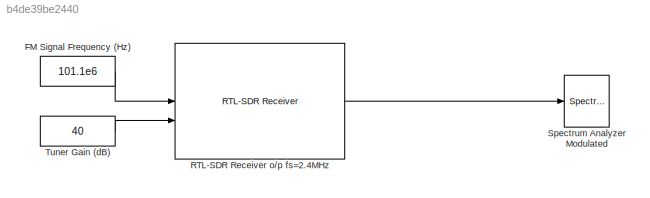
MODEL slx_b4de39be2440
KIND model
CONFIG AbsTol = auto
CONFIG EnableMultiTasking = off
CONFIG FixedStep = auto
CONFIG MaxStep = auto
CONFIG MinStep = auto
CONFIG RelTol = 1e-3
CONFIG SampleTimeConstraint = Unconstrained
CONFIG SolverName = VariableStepAuto
CONFIG StartTime = 0.0
CONFIG StopTime = 10.0
BLOCK [Constant] FM Signal Frequency (Hz)
  Value = 101.1e6
BLOCK [Reference] RTL-SDR Receiver o//p fs=2.4MHz  REF=sdrrlib/RTL-SDR
Receiver
  SourceBlock = sdrrlib/RTL-SDR\nReceiver
  SourceType = RTL-SDR Receiver
BLOCK [SpectrumAnalyzer] Spectrum Analyzer Modulated
  AveragingMethod = Running
  AxesScaling = Manual
  DefaultConfigurationName = spbscopes.SpectrumAnalyzerBlockCfg
  GraphicalSettings = {"GraphicalSettings":{"Style":{"BackgroundColor":[0.12941176470588237,0.12941176470588237,0.12941176470588237],"AxesColor":[1,1,1],"LabelsColor":[0.09803921568627451,0.09803921568627451,0.09803921568627451],"PreserveColors":false,"Visible":[true],"LineStyle":["-"],"LineColor":[[0,0.44313725490196076,0.7372549019607844]],"LineWidth":[1.5],"Marker":["none"],"FontSize":"small"},"Cursors":{"Enabled":f...<+895ch>
  Method = Welch
  SampleRate = 240000
  ScopeFrameLocation = window
  ScopeSpecificationString = spbscopes.SpectrumAnalyzerBlockCfg('CurrentConfiguration', extmgr.ConfigurationSet(extmgr.Configuration('Core','General UI',true,'ShowStatusbar',false,'FigureColor',[0.941176470588235 0.941176470588235 0.941176470588235]),extmgr.Configuration('Core','Source UI',true),extmgr.Configuration('Sources','WiredSimulink',true),extmgr.Configuration('Visuals','Spectrum',true,'AxesProperties',struct('Color',...<+5917ch>
  ShowGrid = off
  Span = 400000
  StartFcn = startfcn_spectrum_analyzer;
  StartFrequency = -200000
  StopFrequency = 200000
  WasSavedAsWebScope = on
  WindowPosition = [462.000000,314.000000,778.000000,225.000000,]
  YLabel = dBm
  YLimits = [-69.383930992470468,32.02048051388072]
BLOCK [Constant] Tuner Gain (dB)
  Value = 40
LINE FM Signal Frequency (Hz):1 -> RTL-SDR Receiver o//p fs=2.4MHz:1
LINE RTL-SDR Receiver o//p fs=2.4MHz:1 -> Spectrum Analyzer Modulated:1
LINE Tuner Gain (dB):1 -> RTL-SDR Receiver o//p fs=2.4MHz:2
